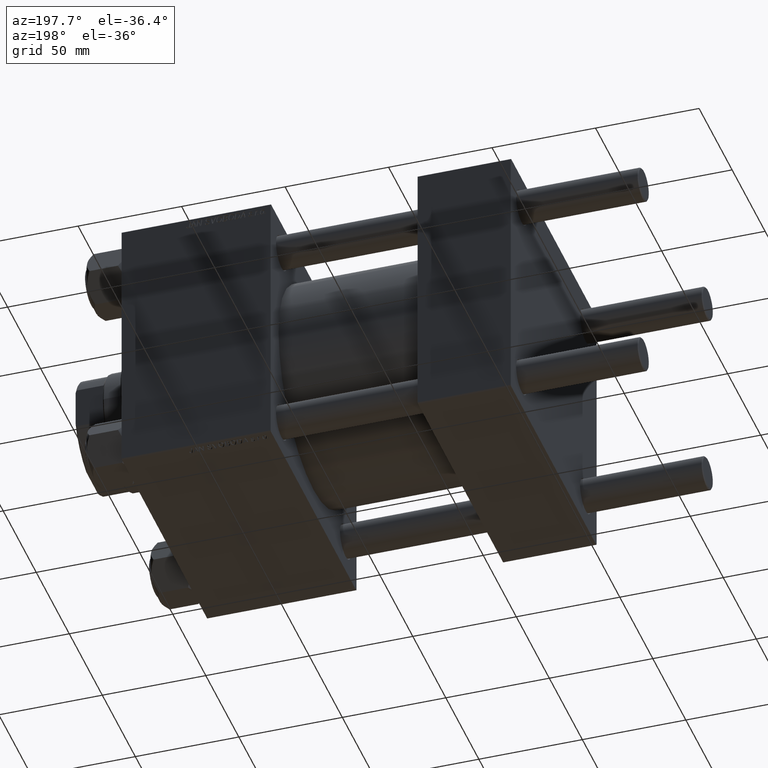
[diagram: clean part render]
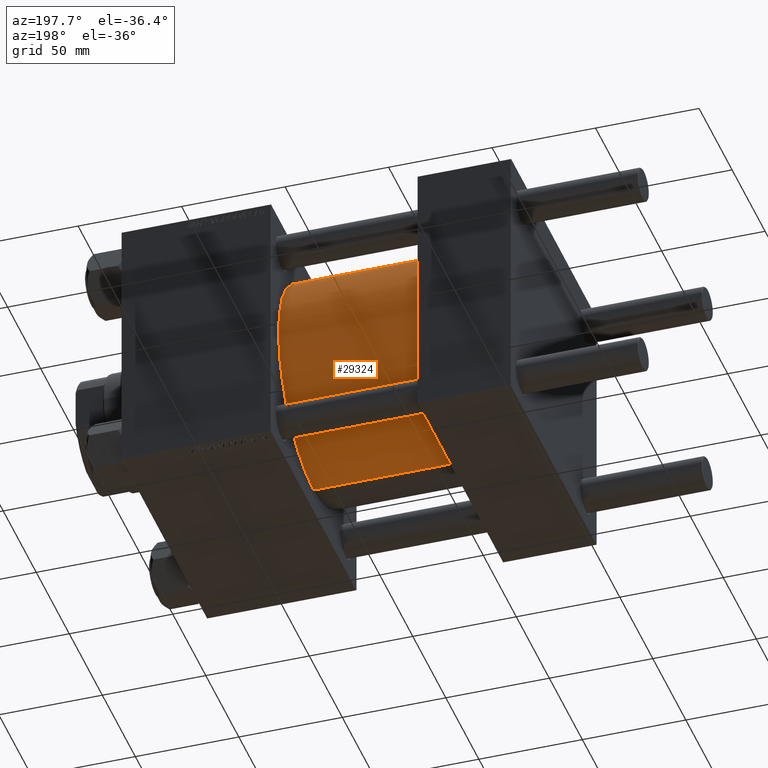
[diagram: same view with one face highlighted and labeled with its STEP entity id]
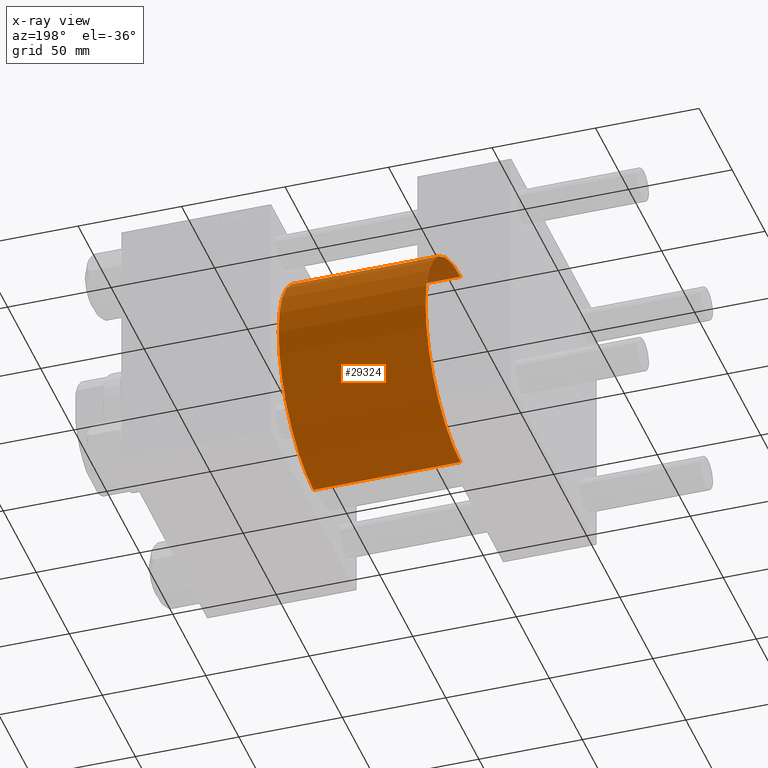
[diagram: x-ray of the same camera — body ghosted, the highlighted face saturated]
A machine part, auxiliary view. The second image highlights one B-rep face of the part: STEP entity #29324.
The next image is the same camera in x-ray: the body ghosted, the highlighted face saturated — about 2% of this face is hidden behind the body in this view.
In plain terms, the highlighted cylindrical surface (partial cylindrical patch) has radius 53 mm, axis along (-1, -0, -0).
Its self-contained STEP definition (entity closure, byte-faithful):
#257 = CARTESIAN_POINT ( 'NONE',  ( 115.9999999999999858, 0.000000000000000000, 0.000000000000000000 ) ) ;
#2782 = DIRECTION ( 'NONE',  ( 0.000000000000000000, 0.000000000000000000, -1.000000000000000000 ) ) ;
#3557 = VERTEX_POINT ( 'NONE', #27107 ) ;
#3563 = FACE_OUTER_BOUND ( 'NONE', #49063, .T. ) ;
#3780 = CARTESIAN_POINT ( 'NONE',  ( 45.00000000000000000, 0.000000000000000000, 53.00000000000000711 ) ) ;
#4333 = EDGE_CURVE ( 'NONE', #48426, #31193, #8302, .T. ) ;
#4484 = CARTESIAN_POINT ( 'NONE',  ( 115.9999999999999858, 0.000000000000000000, 53.00000000000000711 ) ) ;
#4703 = ORIENTED_EDGE ( 'NONE', *, *, #38004, .T. ) ;
#6107 = CARTESIAN_POINT ( 'NONE',  ( 115.9999999999999858, 0.000000000000000000, 0.000000000000000000 ) ) ;
#6979 = DIRECTION ( 'NONE',  ( 0.000000000000000000, 0.000000000000000000, 1.000000000000000000 ) ) ;
#8302 = LINE ( 'NONE', #4484, #45789 ) ;
#9840 = AXIS2_PLACEMENT_3D ( 'NONE', #10791, #41916, #6979 ) ;
#10468 = AXIS2_PLACEMENT_3D ( 'NONE', #6107, #21656, #2782 ) ;
#10791 = CARTESIAN_POINT ( 'NONE',  ( 45.00000000000000000, 0.000000000000000000, 0.000000000000000000 ) ) ;
#12228 = DIRECTION ( 'NONE',  ( -1.000000000000000000, -0.000000000000000000, -0.000000000000000000 ) ) ;
#12621 = DIRECTION ( 'NONE',  ( -1.000000000000000000, -0.000000000000000000, -0.000000000000000000 ) ) ;
#14768 = CIRCLE ( 'NONE', #9840, 53.00000000000000711 ) ;
#16826 = VECTOR ( 'NONE', #43397, 1000.000000000000000 ) ;
#19037 = EDGE_CURVE ( 'NONE', #20996, #3557, #42642, .T. ) ;
#20996 = VERTEX_POINT ( 'NONE', #21507 ) ;
#21507 = CARTESIAN_POINT ( 'NONE',  ( 115.9999999999999858, 6.490628035480973107E-15, -53.00000000000000711 ) ) ;
#21656 = DIRECTION ( 'NONE',  ( 1.000000000000000000, 0.000000000000000000, 0.000000000000000000 ) ) ;
#27107 = CARTESIAN_POINT ( 'NONE',  ( 45.00000000000000000, 6.490628035480973107E-15, -53.00000000000000711 ) ) ;
#27277 = CYLINDRICAL_SURFACE ( 'NONE', #34999, 53.00000000000000711 ) ;
#27561 = EDGE_CURVE ( 'NONE', #20996, #48426, #38143, .T. ) ;
#29324 = ADVANCED_FACE ( 'NONE', ( #3563 ), #27277, .T. ) ;
#31193 = VERTEX_POINT ( 'NONE', #3780 ) ;
#34999 = AXIS2_PLACEMENT_3D ( 'NONE', #257, #12228, #35699 ) ;
#35010 = ORIENTED_EDGE ( 'NONE', *, *, #4333, .F. ) ;
#35699 = DIRECTION ( 'NONE',  ( 0.000000000000000000, 0.000000000000000000, 1.000000000000000000 ) ) ;
#36399 = ORIENTED_EDGE ( 'NONE', *, *, #27561, .F. ) ;
#38004 = EDGE_CURVE ( 'NONE', #3557, #31193, #14768, .T. ) ;
#38143 = CIRCLE ( 'NONE', #10468, 53.00000000000000711 ) ;
#39072 = CARTESIAN_POINT ( 'NONE',  ( 115.9999999999999858, 6.490628035480973107E-15, -53.00000000000000711 ) ) ;
#41916 = DIRECTION ( 'NONE',  ( 1.000000000000000000, -0.000000000000000000, 0.000000000000000000 ) ) ;
#42642 = LINE ( 'NONE', #39072, #16826 ) ;
#43397 = DIRECTION ( 'NONE',  ( -1.000000000000000000, -0.000000000000000000, -0.000000000000000000 ) ) ;
#45789 = VECTOR ( 'NONE', #12621, 1000.000000000000000 ) ;
#45888 = ORIENTED_EDGE ( 'NONE', *, *, #19037, .T. ) ;
#47023 = CARTESIAN_POINT ( 'NONE',  ( 115.9999999999999858, 0.000000000000000000, 53.00000000000000711 ) ) ;
#48426 = VERTEX_POINT ( 'NONE', #47023 ) ;
#49063 = EDGE_LOOP ( 'NONE', ( #36399, #45888, #4703, #35010 ) ) ;